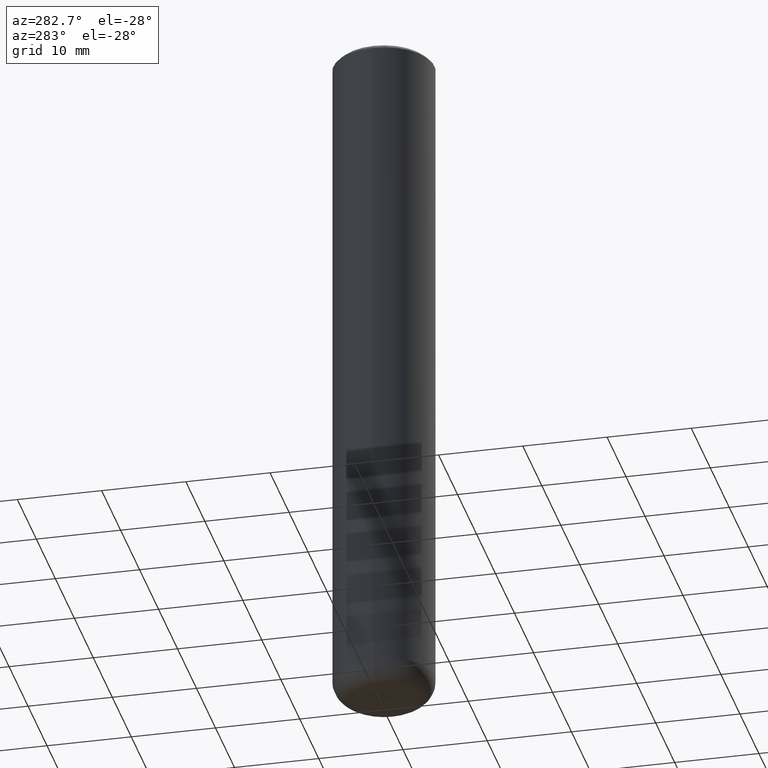
[diagram: clean part render]
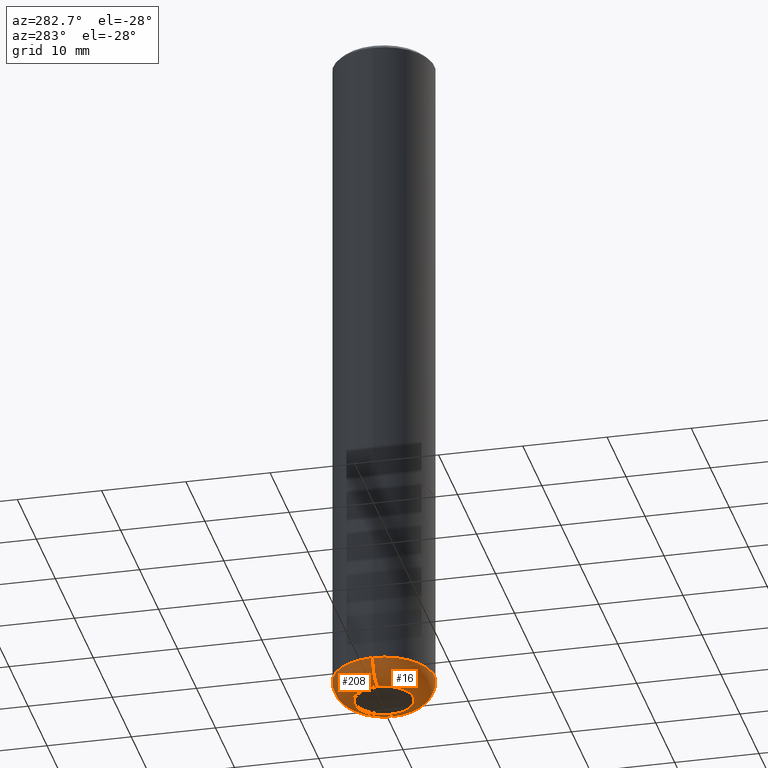
[diagram: same view with one multi-face feature highlighted, each face labeled with its STEP entity id]
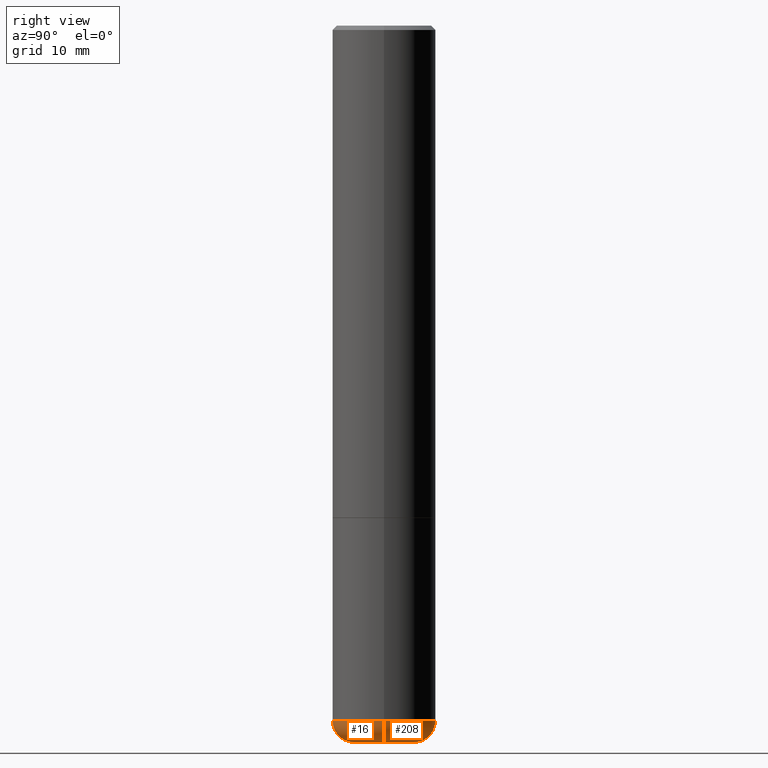
[diagram: same view with one multi-face feature highlighted, each face labeled with its STEP entity id]
A machine part, auxiliary view. The highlighted faces form ONE feature: a constant-radius fillet chain: 2 tangent blend faces with common blend radius 2.4994 mm. The faces share edges in the B-rep.
A second angle (right view) of the same feature is appended — it is thin or edge-on in the first view.
Their STEP definitions:
[1] entity #16 (Torus):
#16 = ADVANCED_FACE ( 'NONE', ( #277 ), #390, .T. ) ;
#18 = AXIS2_PLACEMENT_3D ( 'NONE', #30, #407, #128 ) ;
#30 = CARTESIAN_POINT ( 'NONE',  ( 7.750424287442554569E-29, -1.106555180719558034E-14, -3.169299999999999784 ) ) ;
#31 = CIRCLE ( 'NONE', #398, 0.1378000000000000058 ) ;
#32 = CARTESIAN_POINT ( 'NONE',  ( -0.1378000000000000058, -1.008642391731816283E-14, -3.169299999999999784 ) ) ;
#49 = EDGE_CURVE ( 'NONE', #60, #414, #31, .T. ) ;
#60 = VERTEX_POINT ( 'NONE', #247 ) ;
#61 = CARTESIAN_POINT ( 'NONE',  ( 7.991058417971171713E-29, -1.140911357093774644E-14, -3.267700000000000049 ) ) ;
#63 = DIRECTION ( 'NONE',  ( -1.000000000000000000, 7.105427357601008170E-15, 0.000000000000000000 ) ) ;
#64 = CARTESIAN_POINT ( 'NONE',  ( 0.1378000000000000058, -1.202780406418074782E-14, -3.169299999999999784 ) ) ;
#77 = CARTESIAN_POINT ( 'NONE',  ( 7.750424287442554569E-29, -1.106555180719558034E-14, -3.169299999999999784 ) ) ;
#128 = DIRECTION ( 'NONE',  ( 1.000000000000000000, -6.982962677686269077E-15, 4.883557194083113462E-29 ) ) ;
#133 = DIRECTION ( 'NONE',  ( 1.000000000000000000, -6.982962677686272233E-15, 0.000000000000000000 ) ) ;
#137 = DIRECTION ( 'NONE',  ( 7.105427357601001859E-15, 1.000000000000000000, -3.491481338843145583E-15 ) ) ;
#167 = ORIENTED_EDGE ( 'NONE', *, *, #286, .F. ) ;
#173 = DIRECTION ( 'NONE',  ( -2.445468806185136597E-29, 3.491481338843145583E-15, 1.000000000000000000 ) ) ;
#175 = ORIENTED_EDGE ( 'NONE', *, *, #238, .T. ) ;
#190 = DIRECTION ( 'NONE',  ( -2.445468806185136597E-29, 3.491481338843145583E-15, 1.000000000000000000 ) ) ;
#194 = AXIS2_PLACEMENT_3D ( 'NONE', #77, #173, #241 ) ;
#196 = DIRECTION ( 'NONE',  ( -6.982962677686266711E-15, -1.000000000000000000, 3.491481338843145583E-15 ) ) ;
#198 = ORIENTED_EDGE ( 'NONE', *, *, #49, .T. ) ;
#205 = VERTEX_POINT ( 'NONE', #260 ) ;
#218 = CARTESIAN_POINT ( 'NONE',  ( 0.1378000000000000058, -1.237136582792291392E-14, -3.267700000000000049 ) ) ;
#223 = AXIS2_PLACEMENT_3D ( 'NONE', #32, #137, #63 ) ;
#238 = EDGE_CURVE ( 'NONE', #414, #205, #317, .T. ) ;
#241 = DIRECTION ( 'NONE',  ( 1.000000000000000000, -6.982962677686264344E-15, 0.000000000000000000 ) ) ;
#247 = CARTESIAN_POINT ( 'NONE',  ( -0.1378000000000000058, -9.908617773195276440E-15, -3.267700000000000049 ) ) ;
#260 = CARTESIAN_POINT ( 'NONE',  ( 0.2362000000000000766, -1.271492759166507844E-14, -3.169299999999999784 ) ) ;
#275 = EDGE_LOOP ( 'NONE', ( #167, #198, #175, #290 ) ) ;
#277 = FACE_OUTER_BOUND ( 'NONE', #275, .T. ) ;
#283 = CIRCLE ( 'NONE', #223, 0.09840000000000014013 ) ;
#286 = EDGE_CURVE ( 'NONE', #60, #298, #283, .T. ) ;
#290 = ORIENTED_EDGE ( 'NONE', *, *, #400, .F. ) ;
#293 = CARTESIAN_POINT ( 'NONE',  ( -0.2362000000000000766, -9.387249865330223945E-15, -3.169299999999999784 ) ) ;
#298 = VERTEX_POINT ( 'NONE', #293 ) ;
#317 = CIRCLE ( 'NONE', #325, 0.09840000000000014013 ) ;
#325 = AXIS2_PLACEMENT_3D ( 'NONE', #64, #196, #133 ) ;
#377 = DIRECTION ( 'NONE',  ( 1.000000000000000000, -6.982962677686265922E-15, 0.000000000000000000 ) ) ;
#390 = TOROIDAL_SURFACE ( 'NONE', #18, 0.1378000000000000058, 0.09840000000000014013 ) ;
#391 = CIRCLE ( 'NONE', #194, 0.2362000000000000210 ) ;
#398 = AXIS2_PLACEMENT_3D ( 'NONE', #61, #190, #377 ) ;
#400 = EDGE_CURVE ( 'NONE', #298, #205, #391, .T. ) ;
#407 = DIRECTION ( 'NONE',  ( -2.445468806185136597E-29, 3.491481338843145583E-15, 1.000000000000000000 ) ) ;
#414 = VERTEX_POINT ( 'NONE', #218 ) ;
[2] entity #208 (Torus):
#6 = CIRCLE ( 'NONE', #94, 0.2362000000000000210 ) ;
#32 = CARTESIAN_POINT ( 'NONE',  ( -0.1378000000000000058, -1.008642391731816283E-14, -3.169299999999999784 ) ) ;
#57 = EDGE_LOOP ( 'NONE', ( #111, #374, #321, #373 ) ) ;
#60 = VERTEX_POINT ( 'NONE', #247 ) ;
#63 = DIRECTION ( 'NONE',  ( -1.000000000000000000, 7.105427357601008170E-15, 0.000000000000000000 ) ) ;
#64 = CARTESIAN_POINT ( 'NONE',  ( 0.1378000000000000058, -1.202780406418074782E-14, -3.169299999999999784 ) ) ;
#88 = TOROIDAL_SURFACE ( 'NONE', #215, 0.1378000000000000058, 0.09840000000000014013 ) ;
#94 = AXIS2_PLACEMENT_3D ( 'NONE', #395, #387, #338 ) ;
#103 = FACE_OUTER_BOUND ( 'NONE', #57, .T. ) ;
#111 = ORIENTED_EDGE ( 'NONE', *, *, #411, .T. ) ;
#124 = EDGE_CURVE ( 'NONE', #205, #298, #6, .T. ) ;
#133 = DIRECTION ( 'NONE',  ( 1.000000000000000000, -6.982962677686272233E-15, 0.000000000000000000 ) ) ;
#137 = DIRECTION ( 'NONE',  ( 7.105427357601001859E-15, 1.000000000000000000, -3.491481338843145583E-15 ) ) ;
#157 = AXIS2_PLACEMENT_3D ( 'NONE', #318, #314, #315 ) ;
#195 = CARTESIAN_POINT ( 'NONE',  ( 7.750424287442554569E-29, -1.106555180719558034E-14, -3.169299999999999784 ) ) ;
#196 = DIRECTION ( 'NONE',  ( -6.982962677686266711E-15, -1.000000000000000000, 3.491481338843145583E-15 ) ) ;
#205 = VERTEX_POINT ( 'NONE', #260 ) ;
#208 = ADVANCED_FACE ( 'NONE', ( #103 ), #88, .T. ) ;
#215 = AXIS2_PLACEMENT_3D ( 'NONE', #195, #380, #322 ) ;
#218 = CARTESIAN_POINT ( 'NONE',  ( 0.1378000000000000058, -1.237136582792291392E-14, -3.267700000000000049 ) ) ;
#223 = AXIS2_PLACEMENT_3D ( 'NONE', #32, #137, #63 ) ;
#238 = EDGE_CURVE ( 'NONE', #414, #205, #317, .T. ) ;
#243 = CIRCLE ( 'NONE', #157, 0.1378000000000000058 ) ;
#247 = CARTESIAN_POINT ( 'NONE',  ( -0.1378000000000000058, -9.908617773195276440E-15, -3.267700000000000049 ) ) ;
#260 = CARTESIAN_POINT ( 'NONE',  ( 0.2362000000000000766, -1.271492759166507844E-14, -3.169299999999999784 ) ) ;
#283 = CIRCLE ( 'NONE', #223, 0.09840000000000014013 ) ;
#286 = EDGE_CURVE ( 'NONE', #60, #298, #283, .T. ) ;
#293 = CARTESIAN_POINT ( 'NONE',  ( -0.2362000000000000766, -9.387249865330223945E-15, -3.169299999999999784 ) ) ;
#298 = VERTEX_POINT ( 'NONE', #293 ) ;
#314 = DIRECTION ( 'NONE',  ( -2.445468806185136597E-29, 3.491481338843145583E-15, 1.000000000000000000 ) ) ;
#315 = DIRECTION ( 'NONE',  ( 1.000000000000000000, -6.982962677686265922E-15, 0.000000000000000000 ) ) ;
#317 = CIRCLE ( 'NONE', #325, 0.09840000000000014013 ) ;
#318 = CARTESIAN_POINT ( 'NONE',  ( 7.991058417971171713E-29, -1.140911357093774644E-14, -3.267700000000000049 ) ) ;
#321 = ORIENTED_EDGE ( 'NONE', *, *, #124, .F. ) ;
#322 = DIRECTION ( 'NONE',  ( 1.000000000000000000, -6.982962677686269077E-15, 4.883557194083113462E-29 ) ) ;
#325 = AXIS2_PLACEMENT_3D ( 'NONE', #64, #196, #133 ) ;
#338 = DIRECTION ( 'NONE',  ( 1.000000000000000000, -6.982962677686264344E-15, 0.000000000000000000 ) ) ;
#373 = ORIENTED_EDGE ( 'NONE', *, *, #238, .F. ) ;
#374 = ORIENTED_EDGE ( 'NONE', *, *, #286, .T. ) ;
#380 = DIRECTION ( 'NONE',  ( -2.445468806185136597E-29, 3.491481338843145583E-15, 1.000000000000000000 ) ) ;
#387 = DIRECTION ( 'NONE',  ( -2.445468806185136597E-29, 3.491481338843145583E-15, 1.000000000000000000 ) ) ;
#395 = CARTESIAN_POINT ( 'NONE',  ( 7.750424287442554569E-29, -1.106555180719558034E-14, -3.169299999999999784 ) ) ;
#411 = EDGE_CURVE ( 'NONE', #414, #60, #243, .T. ) ;
#414 = VERTEX_POINT ( 'NONE', #218 ) ;